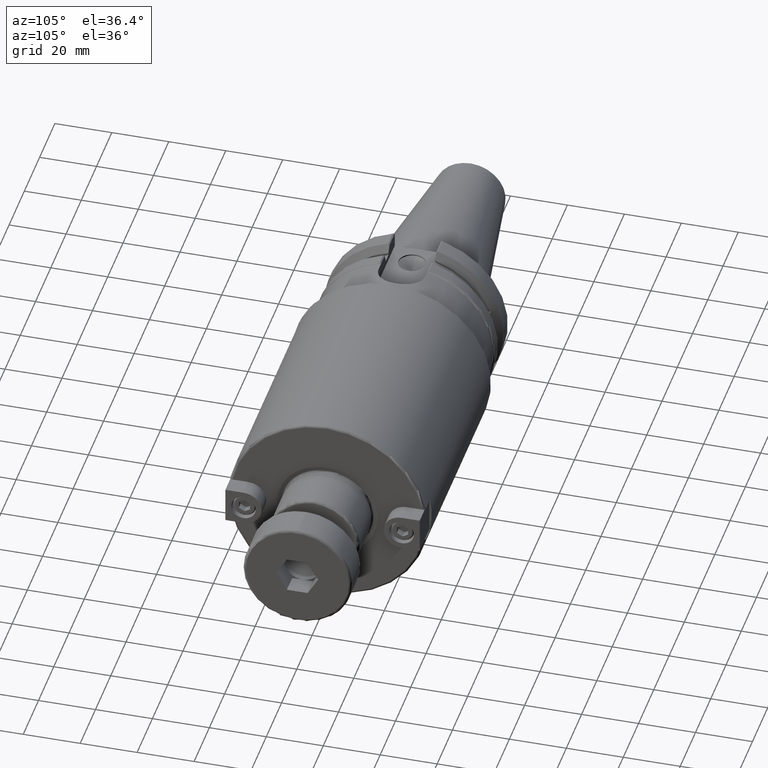
[diagram: clean part render]
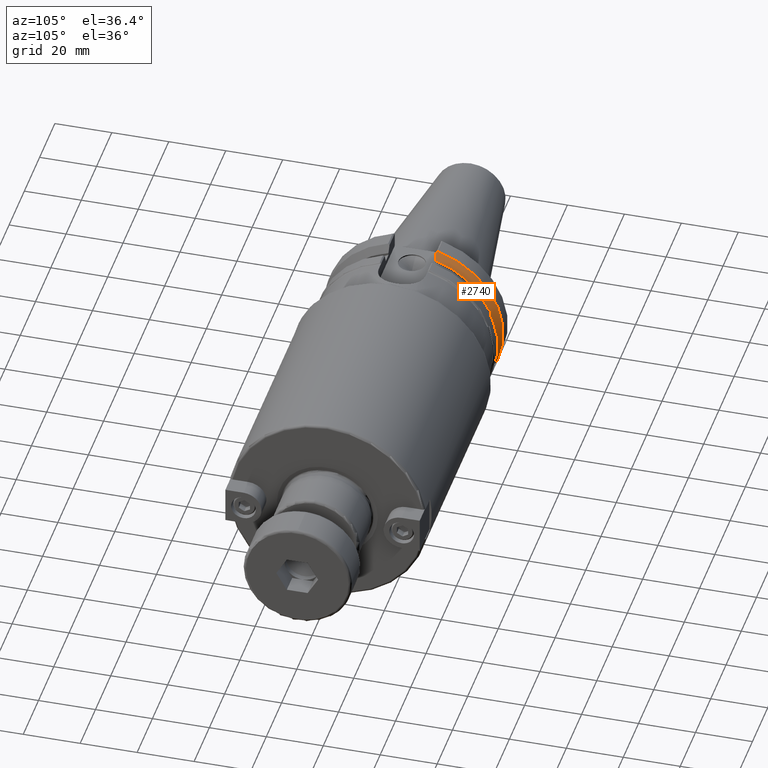
[diagram: same view with one face highlighted and labeled with its STEP entity id]
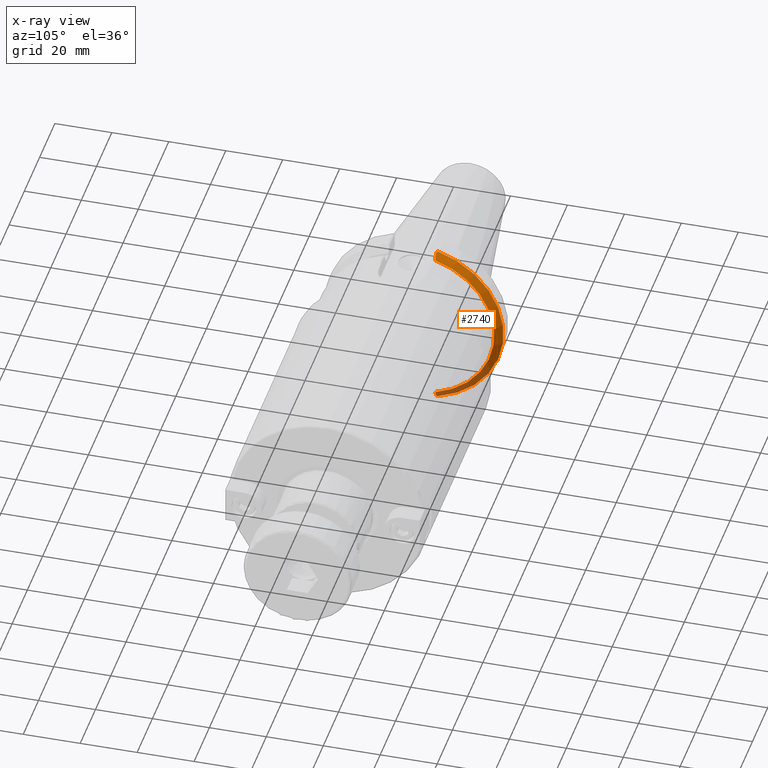
[diagram: x-ray of the same camera — body ghosted, the highlighted face saturated]
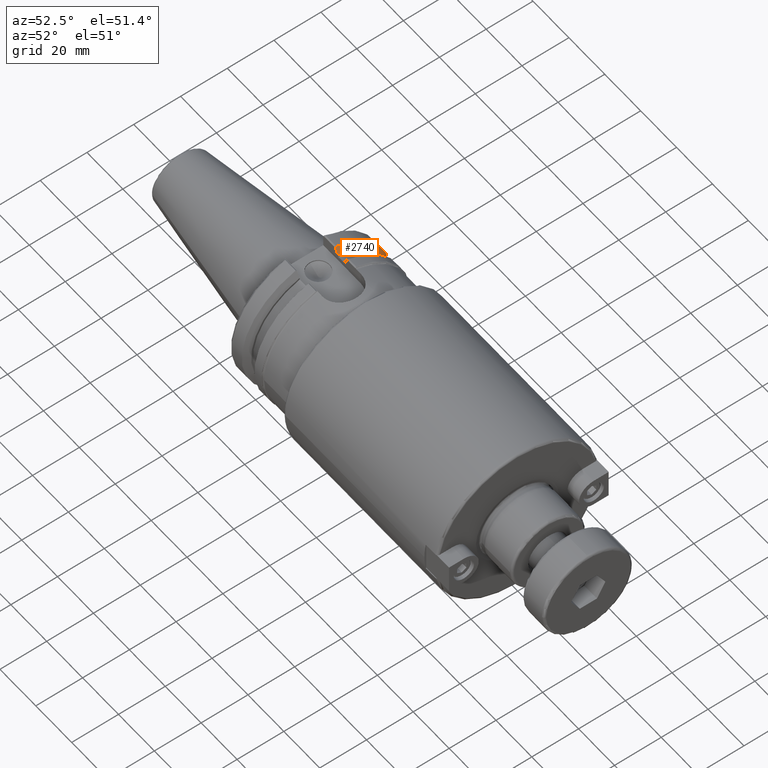
[diagram: same view with one face highlighted and labeled with its STEP entity id]
A machine part, auxiliary view. The second image highlights one B-rep face of the part: STEP entity #2740.
The next image is the same camera in x-ray: the body ghosted, the highlighted face saturated — about 21% of this face is hidden behind the body in this view.
A second angle (auxiliary view) of the same face is appended — the face is thin or edge-on in the first view.
In plain terms, the highlighted conical surface has half-angle 60 deg.
Its self-contained STEP definition (entity closure, byte-faithful):
#72=(
BOUNDED_CURVE()
B_SPLINE_CURVE(2,(#4499,#4500,#4501),.UNSPECIFIED.,.F.,.F.)
B_SPLINE_CURVE_WITH_KNOTS((3,3),(0.0550586467393013,0.331607789535851),
 .UNSPECIFIED.)
CURVE()
GEOMETRIC_REPRESENTATION_ITEM()
RATIONAL_B_SPLINE_CURVE((1.00031614445078,1.00095203904113,1.))
REPRESENTATION_ITEM('')
);
#78=(
BOUNDED_CURVE()
B_SPLINE_CURVE(2,(#4910,#4911,#4912),.UNSPECIFIED.,.F.,.F.)
B_SPLINE_CURVE_WITH_KNOTS((3,3),(0.,0.276549142796478),.UNSPECIFIED.)
CURVE()
GEOMETRIC_REPRESENTATION_ITEM()
RATIONAL_B_SPLINE_CURVE((1.,1.00095203904184,1.00031614445101))
REPRESENTATION_ITEM('')
);
#79=(
BOUNDED_CURVE()
B_SPLINE_CURVE(2,(#4914,#4915,#4916),.UNSPECIFIED.,.F.,.F.)
B_SPLINE_CURVE_WITH_KNOTS((3,3),(0.,0.0639048713676272),.UNSPECIFIED.)
CURVE()
GEOMETRIC_REPRESENTATION_ITEM()
RATIONAL_B_SPLINE_CURVE((1.,1.00028444218275,1.0004764401056))
REPRESENTATION_ITEM('')
);
#80=(
BOUNDED_CURVE()
B_SPLINE_CURVE(2,(#4919,#4920,#4921),.UNSPECIFIED.,.F.,.F.)
B_SPLINE_CURVE_WITH_KNOTS((3,3),(0.329353533631209,0.393258405001024),
 .UNSPECIFIED.)
CURVE()
GEOMETRIC_REPRESENTATION_ITEM()
RATIONAL_B_SPLINE_CURVE((1.00047644010582,1.00028444218289,1.))
REPRESENTATION_ITEM('')
);
#130=CONICAL_SURFACE('',#3093,30.3546886482472,1.0471975511966);
#301=FACE_OUTER_BOUND('',#474,.T.);
#474=EDGE_LOOP('',(#2155,#2156,#2157,#2158,#2159,#2160,#2161,#2162));
#658=CIRCLE('',#3094,28.9593772964944);
#659=CIRCLE('',#3095,31.75);
#660=CIRCLE('',#3096,28.9593772964944);
#1114=B_SPLINE_CURVE_WITH_KNOTS('',3,(#4863,#4864,#4865,#4866,#4867,#4868,
#4869,#4870,#4871,#4872,#4873,#4874,#4875,#4876),.UNSPECIFIED.,.F.,.F.,
(4,2,2,2,2,2,4),(0.451995700189024,0.464547828547661,0.504528771685167,
0.544509714822672,0.584490657960177,0.624471601097683,0.637023729456319),
 .UNSPECIFIED.);
#1199=VERTEX_POINT('',#4496);
#1200=VERTEX_POINT('',#4498);
#1270=VERTEX_POINT('',#4860);
#1271=VERTEX_POINT('',#4862);
#1275=VERTEX_POINT('',#4907);
#1276=VERTEX_POINT('',#4909);
#1277=VERTEX_POINT('',#4913);
#1278=VERTEX_POINT('',#4917);
#1493=EDGE_CURVE('',#1200,#1199,#72,.T.);
#1598=EDGE_CURVE('',#1271,#1270,#1114,.T.);
#1603=EDGE_CURVE('',#1275,#1270,#658,.T.);
#1604=EDGE_CURVE('',#1275,#1276,#78,.T.);
#1605=EDGE_CURVE('',#1277,#1276,#79,.T.);
#1606=EDGE_CURVE('',#1277,#1278,#659,.T.);
#1607=EDGE_CURVE('',#1200,#1278,#80,.T.);
#1608=EDGE_CURVE('',#1271,#1199,#660,.T.);
#2155=ORIENTED_EDGE('',*,*,#1598,.T.);
#2156=ORIENTED_EDGE('',*,*,#1603,.F.);
#2157=ORIENTED_EDGE('',*,*,#1604,.T.);
#2158=ORIENTED_EDGE('',*,*,#1605,.F.);
#2159=ORIENTED_EDGE('',*,*,#1606,.T.);
#2160=ORIENTED_EDGE('',*,*,#1607,.F.);
#2161=ORIENTED_EDGE('',*,*,#1493,.T.);
#2162=ORIENTED_EDGE('',*,*,#1608,.F.);
#2740=ADVANCED_FACE('',(#301),#130,.T.);
#3093=AXIS2_PLACEMENT_3D('',#4906,#3666,#3667);
#3094=AXIS2_PLACEMENT_3D('',#4908,#3668,#3669);
#3095=AXIS2_PLACEMENT_3D('',#4918,#3670,#3671);
#3096=AXIS2_PLACEMENT_3D('',#4922,#3672,#3673);
#3666=DIRECTION('center_axis',(-1.,0.,0.));
#3667=DIRECTION('ref_axis',(0.,1.,0.));
#3668=DIRECTION('center_axis',(1.,0.,0.));
#3669=DIRECTION('ref_axis',(0.,0.,-1.));
#3670=DIRECTION('center_axis',(1.,0.,0.));
#3671=DIRECTION('ref_axis',(0.,0.,-1.));
#3672=DIRECTION('center_axis',(1.,0.,0.));
#3673=DIRECTION('ref_axis',(0.,0.,-1.));
#4496=CARTESIAN_POINT('',(9.2191,8.19,27.7771386827498));
#4498=CARTESIAN_POINT('',(7.88668530351257,8.19,30.1755016258903));
#4499=CARTESIAN_POINT('Ctrl Pts',(7.88668530351257,8.19,30.1755016258903));
#4500=CARTESIAN_POINT('Ctrl Pts',(8.58046356152372,8.19,28.9303689539709));
#4501=CARTESIAN_POINT('Ctrl Pts',(9.2191,8.19,27.7771386827498));
#4860=CARTESIAN_POINT('',(9.2191,27.4956274489925,9.09043478536247));
#4862=CARTESIAN_POINT('',(9.2191,26.9060914640648,10.7101715919071));
#4863=CARTESIAN_POINT('Ctrl Pts',(9.2191,26.9060914640648,10.7101715919071));
#4864=CARTESIAN_POINT('Ctrl Pts',(9.20497959280038,26.9406927482839,10.6893765730703));
#4865=CARTESIAN_POINT('Ctrl Pts',(9.19150701821434,26.9744191989197,10.6676007180674));
#4866=CARTESIAN_POINT('Ctrl Pts',(9.13811855884095,27.1113422433189,10.5723885976054));
#4867=CARTESIAN_POINT('Ctrl Pts',(9.09998029158246,27.2180531796526,10.4801333026531));
#4868=CARTESIAN_POINT('Ctrl Pts',(9.04778935539424,27.3968610665578,10.2639559818059));
#4869=CARTESIAN_POINT('Ctrl Pts',(9.0341,27.4684373304961,10.139516340139));
#4870=CARTESIAN_POINT('Ctrl Pts',(9.0341,27.559599249844,9.88905102521651));
#4871=CARTESIAN_POINT('Ctrl Pts',(9.04778935539424,27.5847569104122,9.74771639360672));
#4872=CARTESIAN_POINT('Ctrl Pts',(9.09998029158246,27.5867382255984,9.46717946402648));
#4873=CARTESIAN_POINT('Ctrl Pts',(9.13811855884095,27.5642934663232,9.32791534028656));
#4874=CARTESIAN_POINT('Ctrl Pts',(9.19150701821434,27.5206055003513,9.16696618806878));
#4875=CARTESIAN_POINT('Ctrl Pts',(9.20497959280038,27.5087667900418,9.12860597076219));
#4876=CARTESIAN_POINT('Ctrl Pts',(9.2191,27.4956274489925,9.09043478536247));
#4906=CARTESIAN_POINT('Origin',(8.41351661546218,0.,0.));
#4907=CARTESIAN_POINT('',(9.2191,8.19,-27.7771386827498));
#4908=CARTESIAN_POINT('Origin',(9.2191,0.,0.));
#4909=CARTESIAN_POINT('',(7.88668530351257,8.19,-30.1755016258903));
#4910=CARTESIAN_POINT('Ctrl Pts',(9.2191,8.19,-27.7771386827498));
#4911=CARTESIAN_POINT('Ctrl Pts',(8.58046356152232,8.19,-28.9303689539734));
#4912=CARTESIAN_POINT('Ctrl Pts',(7.88668530351257,8.19,-30.1755016258903));
#4913=CARTESIAN_POINT('',(7.60793323092436,8.67204822802685,-30.5427254764662));
#4914=CARTESIAN_POINT('Ctrl Pts',(7.60793323092436,8.67204822802687,-30.5427254764662));
#4915=CARTESIAN_POINT('Ctrl Pts',(7.74899148121626,8.42917748262651,-30.357706789263));
#4916=CARTESIAN_POINT('Ctrl Pts',(7.88668530351257,8.19,-30.1755016258903));
#4917=CARTESIAN_POINT('',(7.60793323092436,8.67204822802685,30.5427254764662));
#4918=CARTESIAN_POINT('Origin',(7.60793323092436,0.,0.));
#4919=CARTESIAN_POINT('Ctrl Pts',(7.88668530351257,8.19,30.1755016258903));
#4920=CARTESIAN_POINT('Ctrl Pts',(7.74899148121161,8.42917748263465,30.3577067892692));
#4921=CARTESIAN_POINT('Ctrl Pts',(7.60793323092436,8.67204822802687,30.5427254764662));
#4922=CARTESIAN_POINT('Origin',(9.2191,0.,0.));